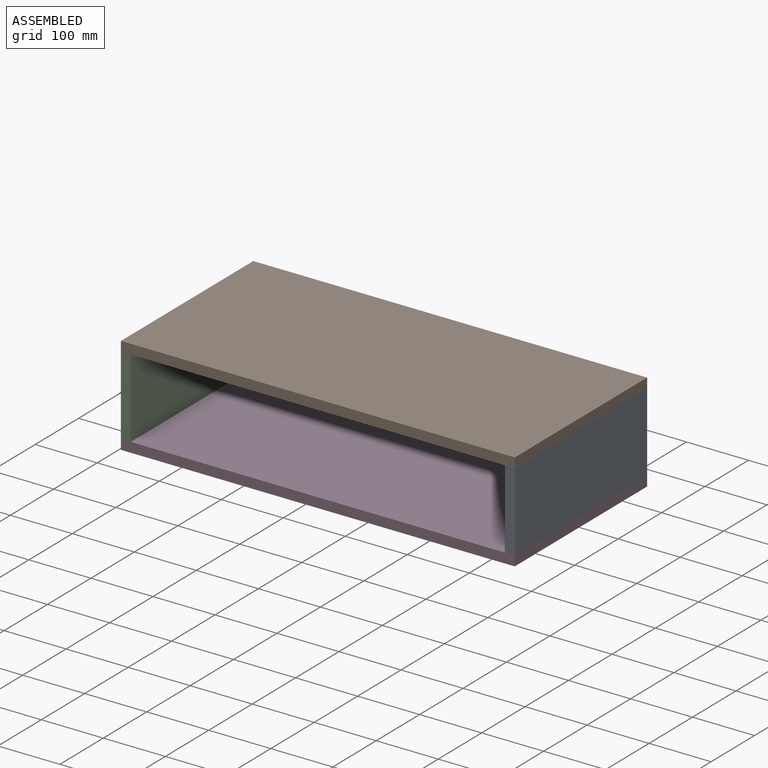
[diagram: assembled view]
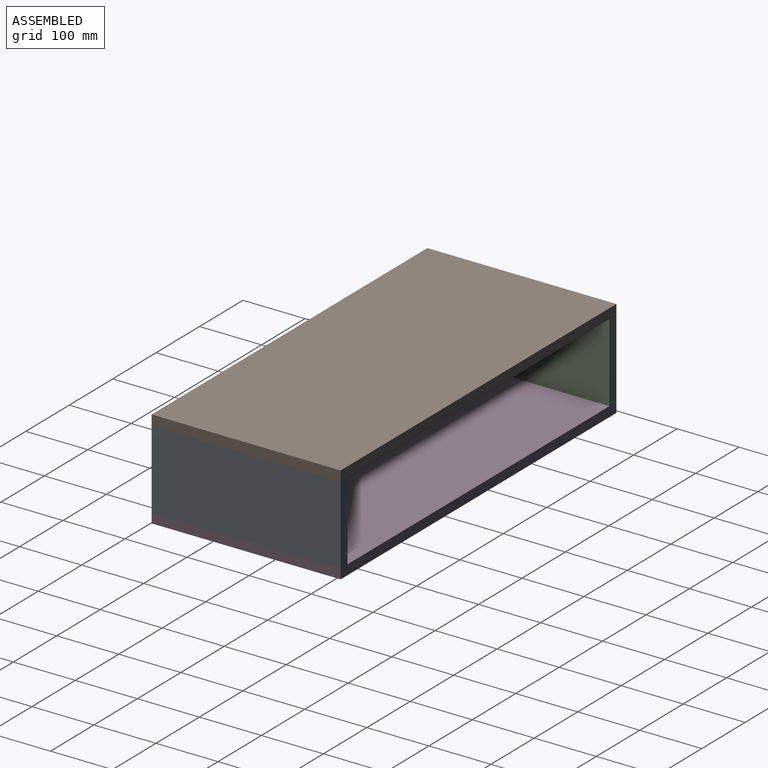
[diagram: assembled view, second angle]
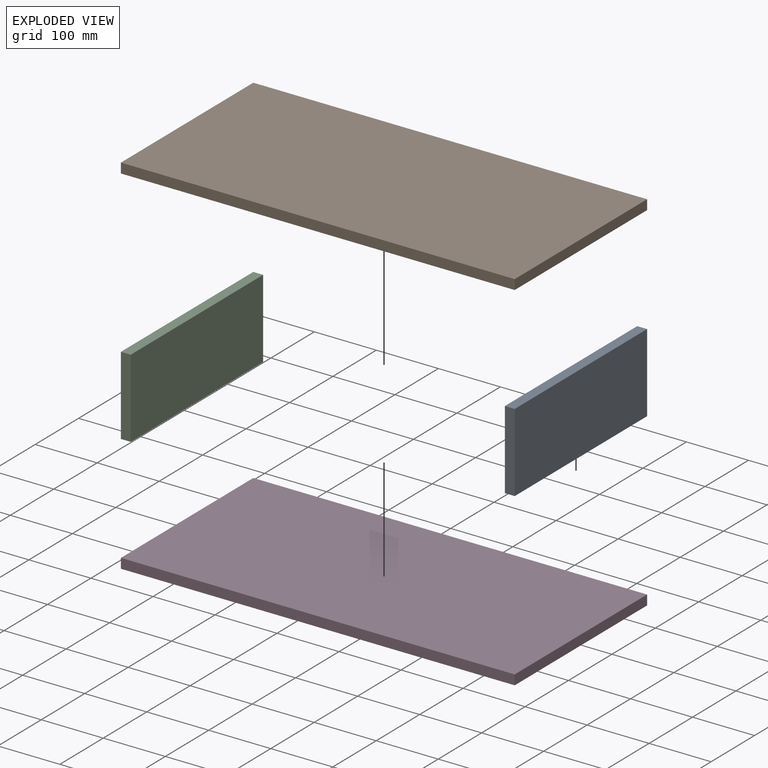
[diagram: exploded view]
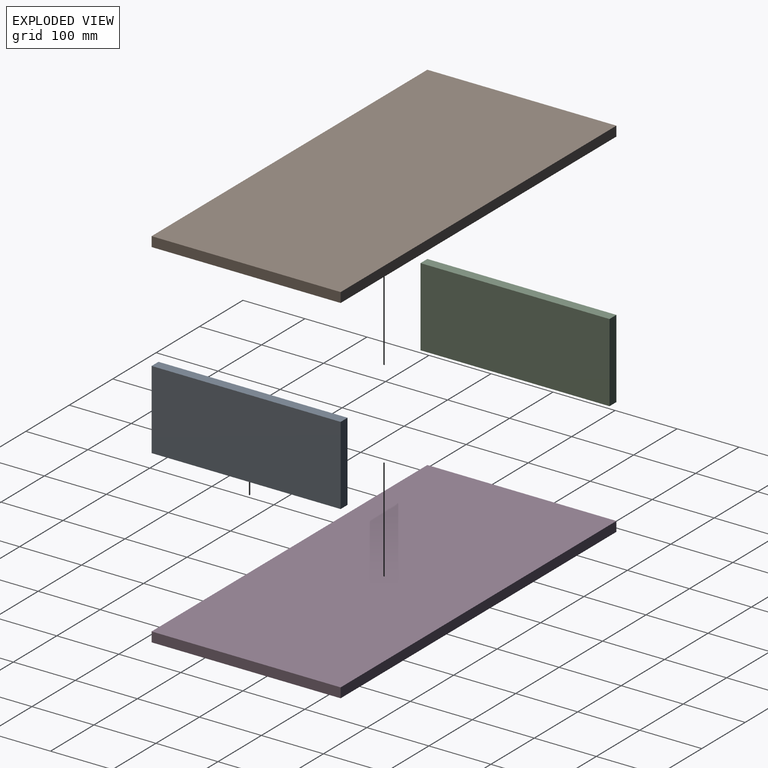
[diagram: exploded view, second angle]
ASSEMBLY  parts=4 mates=3
PART A: 6 faces, bbox 15.9x304.8x127 mm
  f0: plane 304.8x15.88mm, normal (0,0,1), area 4838.7mm2, adj f1,f3,f4,f5
  f1: plane 127x15.88mm, normal (0,-1,0), area 2016.1mm2, adj f0,f2,f4,f5
  f2: plane 304.8x15.88mm, normal (0,0,-1), area 4838.7mm2, adj f1,f3,f4,f5
  f3: plane 127x15.88mm, normal (0,1,0), area 2016.1mm2, adj f0,f2,f4,f5
  f4: plane 304.8x127mm, normal (1,0,0), area 38709.6mm2, adj f0,f1,f2,f3
  f5: plane 304.8x127mm, normal (-1,0,0), area 38709.6mm2, adj f0,f1,f2,f3
PART B: 6 faces, bbox 635x304.8x15.9 mm
  f0: plane 635x15.88mm, normal (0,1,0), area 10080.6mm2, adj f1,f3,f4,f5
  f1: plane 304.8x15.88mm, normal (-1,0,0), area 4838.7mm2, adj f0,f2,f4,f5
  f2: plane 635x15.88mm, normal (0,-1,0), area 10080.6mm2, adj f1,f3,f4,f5
  f3: plane 304.8x15.88mm, normal (1,0,0), area 4838.7mm2, adj f0,f2,f4,f5
  f4: plane 635x304.8mm, normal (0,0,1), area 193548mm2, adj f0,f1,f2,f3
  f5: plane 635x304.8mm, normal (0,0,-1), area 193548mm2, adj f0,f1,f2,f3
PART C: same geometry as A
PART D: same geometry as B
PLACE A t=(148.07,-21.3,-241.78)mm
PLACE B t=(-103.88,33.82,-98.82)mm
PLACE C t=(-471.06,-21.3,-241.78)mm
PLACE D t=(-103.88,33.82,-241.69)mm
MATE fastened B.f5 <-> C.f0  axis (0,0,1) through (-471.06,-172.24,-98.82)mm
MATE fastened C.f2 <-> D.f4  axis (0,0,1) through (-471.06,-172.24,-225.82)mm
MATE fastened D.f4 <-> A.f2  axis (0,0,1) through (163.94,-172.24,-225.82)mm
